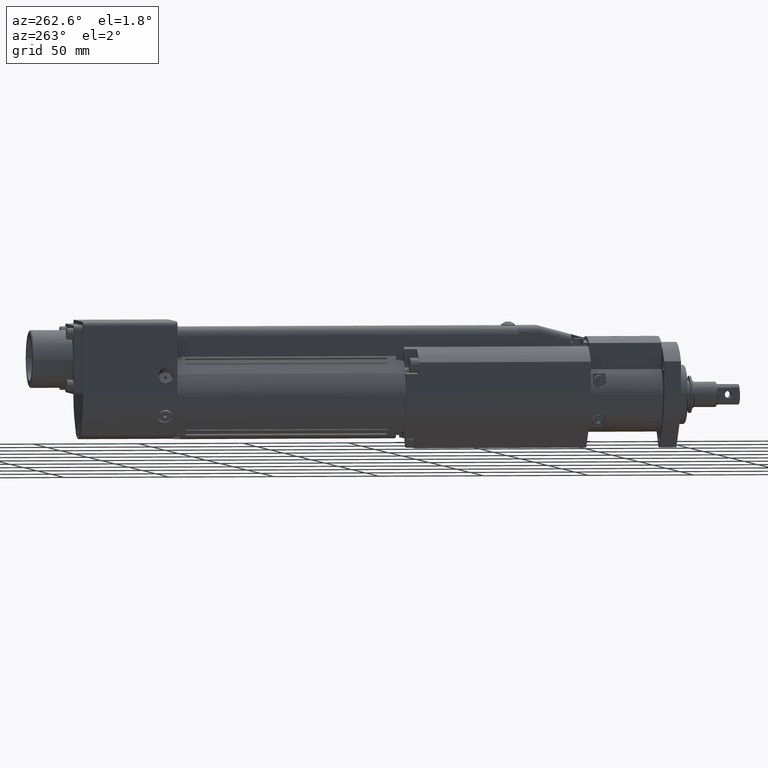
[diagram: clean part render]
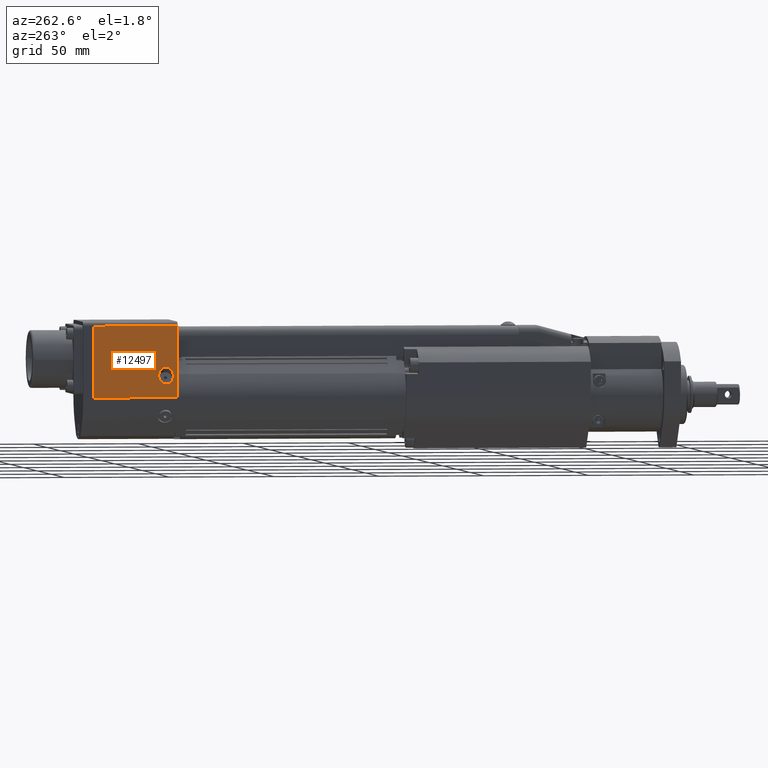
[diagram: same view with one face highlighted and labeled with its STEP entity id]
A machine part, auxiliary view. The second image highlights one B-rep face of the part: STEP entity #12497.
In plain terms, the highlighted planar face has unit normal (-1, 0, -0).
Its self-contained STEP definition (entity closure, byte-faithful):
#161=ELLIPSE('',#13499,4.04145188432738,3.5);
#481=FACE_BOUND('',#1626,.T.);
#891=FACE_OUTER_BOUND('',#1625,.T.);
#1625=EDGE_LOOP('',(#9349,#9350,#9351,#9352));
#1626=EDGE_LOOP('',(#9353));
#2723=LINE('',#18341,#3779);
#3193=LINE('',#20494,#4249);
#3194=LINE('',#20496,#4250);
#3195=LINE('',#20497,#4251);
#3779=VECTOR('',#14577,10.);
#4249=VECTOR('',#15999,10.);
#4250=VECTOR('',#16000,10.);
#4251=VECTOR('',#16001,10.);
#4912=VERTEX_POINT('',#18338);
#4913=VERTEX_POINT('',#18340);
#5328=VERTEX_POINT('',#20493);
#5329=VERTEX_POINT('',#20495);
#5330=VERTEX_POINT('',#20498);
#6076=EDGE_CURVE('',#4912,#4913,#2723,.T.);
#6784=EDGE_CURVE('',#4912,#5328,#3193,.T.);
#6785=EDGE_CURVE('',#5329,#5328,#3194,.T.);
#6786=EDGE_CURVE('',#4913,#5329,#3195,.T.);
#6787=EDGE_CURVE('',#5330,#5330,#161,.T.);
#9349=ORIENTED_EDGE('',*,*,#6076,.F.);
#9350=ORIENTED_EDGE('',*,*,#6784,.T.);
#9351=ORIENTED_EDGE('',*,*,#6785,.F.);
#9352=ORIENTED_EDGE('',*,*,#6786,.F.);
#9353=ORIENTED_EDGE('',*,*,#6787,.T.);
#11248=PLANE('',#13498);
#12497=ADVANCED_FACE('',(#891,#481),#11248,.T.);
#13498=AXIS2_PLACEMENT_3D('',#20492,#15997,#15998);
#13499=AXIS2_PLACEMENT_3D('',#20499,#16002,#16003);
#14577=DIRECTION('',(1.22464679914735E-16,-2.8404901394892E-16,-1.));
#15997=DIRECTION('center_axis',(-1.,6.89986709772563E-16,-1.22464679914735E-16));
#15998=DIRECTION('ref_axis',(-1.22464679914735E-16,2.8404901394892E-16,
1.));
#15999=DIRECTION('',(6.89986709772563E-16,1.,-2.8404901394892E-16));
#16000=DIRECTION('',(-1.22464679914735E-16,2.8404901394892E-16,1.));
#16001=DIRECTION('',(6.89986709772563E-16,1.,-2.8404901394892E-16));
#16002=DIRECTION('center_axis',(1.,-6.89986709772563E-16,1.22464679914735E-16));
#16003=DIRECTION('ref_axis',(1.22464679914735E-16,-2.8404901394892E-16,
-1.));
#18338=CARTESIAN_POINT('',(-17.9999999999348,166.000000000003,34.0000000000568));
#18340=CARTESIAN_POINT('',(-17.9999999999348,166.000000000003,5.44755146216296E-11));
#18341=CARTESIAN_POINT('',(-17.9999999999348,166.000000000003,34.0000000000568));
#20492=CARTESIAN_POINT('Origin',(-17.9999999999348,166.000000000003,5.44755146216296E-11));
#20493=CARTESIAN_POINT('',(-17.9999999999348,206.000000000003,34.0000000000567));
#20494=CARTESIAN_POINT('',(-17.9999999999348,166.000000000003,34.0000000000568));
#20495=CARTESIAN_POINT('',(-17.9999999999348,206.000000000003,5.44641526610716E-11));
#20496=CARTESIAN_POINT('',(-17.9999999999348,206.000000000003,34.0000000000567));
#20497=CARTESIAN_POINT('',(-17.9999999999348,166.000000000003,5.44755146216296E-11));
#20498=CARTESIAN_POINT('',(-17.9999999999348,171.500000000003,14.4337567298499));
#20499=CARTESIAN_POINT('Origin',(-17.9999999999348,171.500000000003,10.3923048455225));